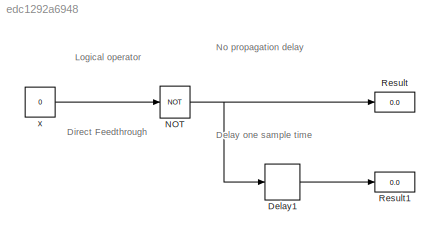
MODEL slx_edc1292a6948
KIND model
CONFIG AbsTol = auto
CONFIG FixedStep = 1
CONFIG MaxStep = auto
CONFIG MinStep = auto
CONFIG RelTol = 1e-3
CONFIG SampleTimeConstraint = Unconstrained
CONFIG Solver = ode1
CONFIG SolverMode = Auto
CONFIG SolverName = ode1
CONFIG StartTime = 0.0
CONFIG StopTime = 10.0
BLOCK [Delay] Delay1
  DelayLength = 1
  InitialCondition = 0
  InputPortMap = u0
  InputProcessing = Inherited
  Ports = [1, 1]
BLOCK [Logic] NOT
  AllPortsSameDT = off
  IconShape = distinctive
  Operator = NOT
  OutDataTypeStr = boolean
  Ports = [1, 1]
BLOCK [Display] Result
  Decimation = 1
  Ports = [1]
BLOCK [Display] Result1
  Decimation = 1
  Ports = [1]
BLOCK [Constant] x
  OutDataTypeStr = int8
  OutMax = 7
  OutMin = -8
  SampleTime = 1
  Value = 0
ANNOTATION (root): Direct Feedthrough
ANNOTATION (root): Logical operator
ANNOTATION (root): Delay one sample time
ANNOTATION (root): No propagation delay
LINE Delay1:1 -> Result1:1
NET NOT:1 -> Delay1:1, Result:1
LINE x:1 -> NOT:1
note: NET lines group one-source signal fan-out (src -> all destinations, sorted); 1:1 wires keep LINE
